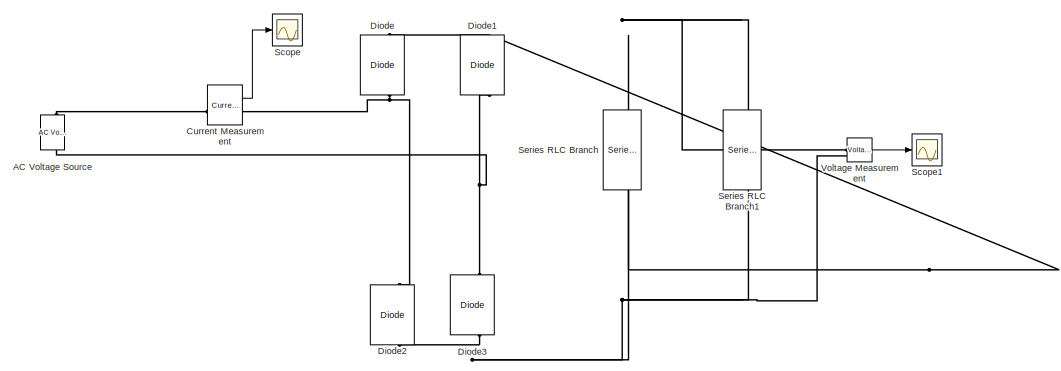
[diagram: root canvas - part 1/3, top right region]
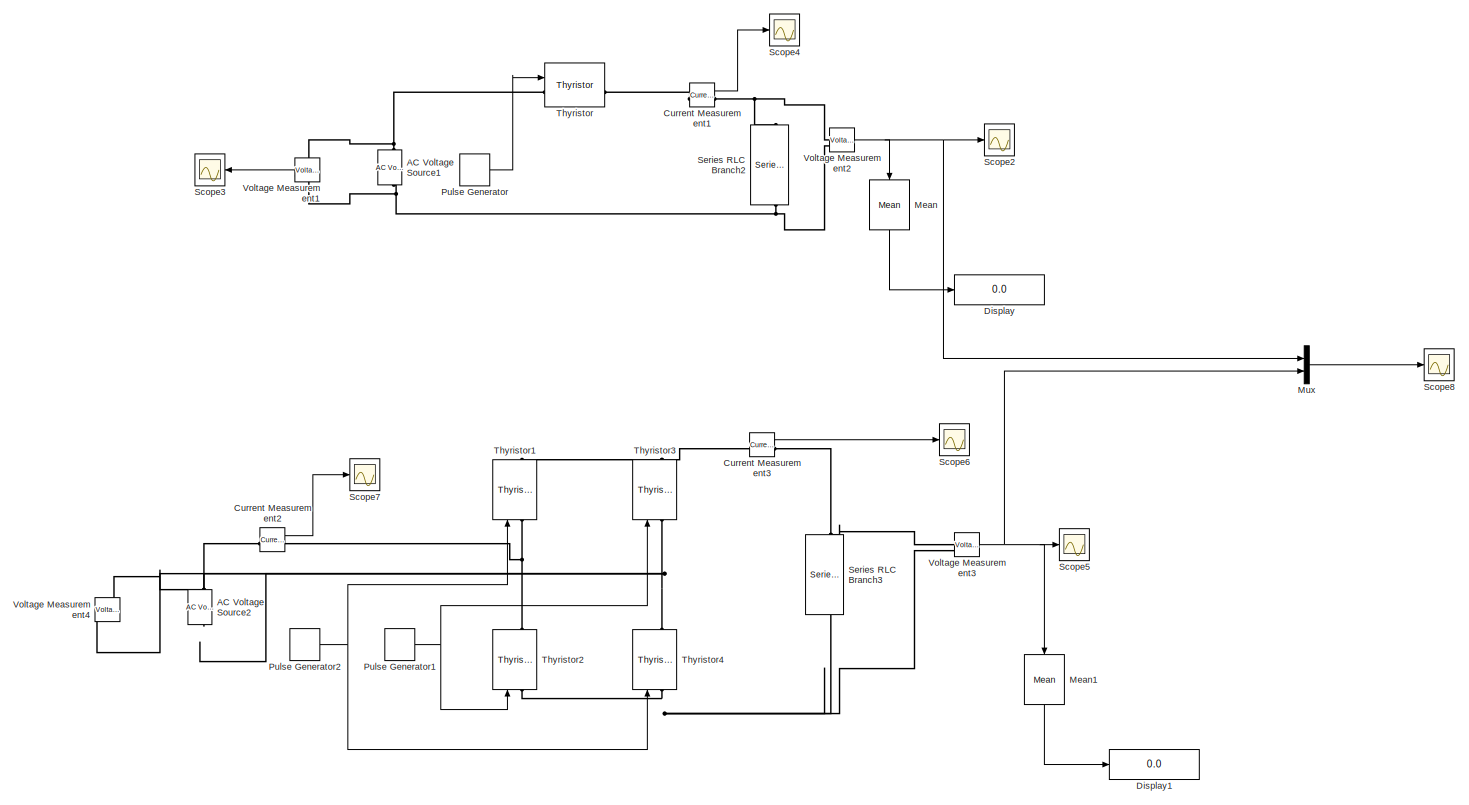
[diagram: root canvas - part 2/3, left side, full height]
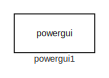
[diagram: root canvas - part 3/3, middle right region]
MODEL slx_576c6f25acc8
KIND model
CONFIG AbsTol = auto
CONFIG EnableMultiTasking = off
CONFIG FixedStep = 0.00001
CONFIG MaxStep = auto
CONFIG MinStep = auto
CONFIG RelTol = 1e-3
CONFIG SampleTimeConstraint = Unconstrained
CONFIG SolverName = VariableStepAuto
CONFIG StartTime = 0.0
CONFIG StopTime = 0.1
BLOCK [Reference] AC Voltage Source  REF=spsACVoltageSourceLib/AC Voltage Source
  Commented = on
  LibrarySourceBlock = sps_lib/Sources/AC Voltage Source
  SourceBlock = spsACVoltageSourceLib/AC Voltage Source
  SourceType = AC Voltage Source
BLOCK [Reference] AC Voltage Source1  REF=spsACVoltageSourceLib/AC Voltage Source
  Commented = on
  LibrarySourceBlock = sps_lib/Sources/AC Voltage Source
  SourceBlock = spsACVoltageSourceLib/AC Voltage Source
  SourceType = AC Voltage Source
BLOCK [Reference] AC Voltage Source2  REF=spsACVoltageSourceLib/AC Voltage Source
  Commented = on
  LibrarySourceBlock = sps_lib/Sources/AC Voltage Source
  SourceBlock = spsACVoltageSourceLib/AC Voltage Source
  SourceType = AC Voltage Source
BLOCK [Reference] Current Measurement  REF=spsCurrentMeasurementLib/Current Measurement
  Commented = on
  LibrarySourceBlock = sps_lib/Sensors and Measurements/Current Measurement
  SourceBlock = spsCurrentMeasurementLib/Current Measurement
  SourceType = Current Measurement
  UserDataPersistent = on
BLOCK [Reference] Current Measurement1  REF=spsCurrentMeasurementLib/Current Measurement
  Commented = on
  LibrarySourceBlock = sps_lib/Sensors and Measurements/Current Measurement
  SourceBlock = spsCurrentMeasurementLib/Current Measurement
  SourceType = Current Measurement
  UserDataPersistent = on
BLOCK [Reference] Current Measurement2  REF=spsCurrentMeasurementLib/Current Measurement
  Commented = on
  LibrarySourceBlock = sps_lib/Sensors and Measurements/Current Measurement
  SourceBlock = spsCurrentMeasurementLib/Current Measurement
  SourceType = Current Measurement
  UserDataPersistent = on
BLOCK [Reference] Current Measurement3  REF=spsCurrentMeasurementLib/Current Measurement
  Commented = on
  LibrarySourceBlock = sps_lib/Sensors and Measurements/Current Measurement
  SourceBlock = spsCurrentMeasurementLib/Current Measurement
  SourceType = Current Measurement
  UserDataPersistent = on
BLOCK [Reference] Diode  REF=spsDiodeLib/Diode
  Commented = on
  LibrarySourceBlock = sps_lib/Power Electronics/Diode
  NameLocation = right
  SourceBlock = spsDiodeLib/Diode
  SourceType = Diode
BLOCK [Reference] Diode1  REF=spsDiodeLib/Diode
  Commented = on
  LibrarySourceBlock = sps_lib/Power Electronics/Diode
  NameLocation = right
  SourceBlock = spsDiodeLib/Diode
  SourceType = Diode
BLOCK [Reference] Diode2  REF=spsDiodeLib/Diode
  Commented = on
  LibrarySourceBlock = sps_lib/Power Electronics/Diode
  NameLocation = right
  SourceBlock = spsDiodeLib/Diode
  SourceType = Diode
BLOCK [Reference] Diode3  REF=spsDiodeLib/Diode
  Commented = on
  LibrarySourceBlock = sps_lib/Power Electronics/Diode
  NameLocation = right
  SourceBlock = spsDiodeLib/Diode
  SourceType = Diode
BLOCK [Display] Display
  Commented = on
  Decimation = 1
BLOCK [Display] Display1
  Commented = on
  Decimation = 1
BLOCK [Reference] Mean  REF=spsMeanLib/Mean
  Commented = on
  LibrarySourceBlock = sps_lib/Sensors and Measurements/Mean
  NameLocation = left
  SourceBlock = spsMeanLib/Mean
  SourceType = Mean
BLOCK [Reference] Mean1  REF=spsMeanLib/Mean
  Commented = on
  LibrarySourceBlock = sps_lib/Sensors and Measurements/Mean
  NameLocation = left
  SourceBlock = spsMeanLib/Mean
  SourceType = Mean
BLOCK [Mux] Mux
  Commented = on
  DisplayOption = bar
  Inputs = 2
BLOCK [DiscretePulseGenerator] Pulse Generator
  Amplitude = 3
  Commented = on
  Period = 0.02
  PhaseDelay = 60/360*0.02
  PulseType = Time based
  PulseWidth = 10
BLOCK [DiscretePulseGenerator] Pulse Generator1
  Amplitude = 3
  Commented = on
  Period = 0.02
  PhaseDelay = 60/360*0.02+0.01
  PulseType = Time based
  PulseWidth = 10
BLOCK [DiscretePulseGenerator] Pulse Generator2
  Amplitude = 3
  Commented = on
  Period = 0.02
  PhaseDelay = 60/360*0.02
  PulseType = Time based
  PulseWidth = 10
BLOCK [Scope] Scope
  Commented = on
  Floating = off
  NumInputPorts = 1
  ScopeSpecificationString = Simulink.scopes.TimeScopeBlockCfg('CurrentConfiguration', extmgr.ConfigurationSet(extmgr.Configuration('Core','General UI',true),extmgr.Configuration('Core','Source UI',true),extmgr.Configuration('Sources','WiredSimulink',true,'DataLogging',true,'DataLoggingVariableName','is'),extmgr.Configuration('Visuals','Time Domain',true,'SerializedDisplays',{struct('MinYLimReal','-8.89111','MaxYLimReal','7.0...<+1434ch>
BLOCK [Scope] Scope1
  Commented = on
  Floating = off
  NumInputPorts = 1
  ScopeSpecificationString = Simulink.scopes.TimeScopeBlockCfg('CurrentConfiguration', extmgr.ConfigurationSet(extmgr.Configuration('Core','General UI',true),extmgr.Configuration('Core','Source UI',true),extmgr.Configuration('Sources','WiredSimulink',true,'DataLoggingVariableName','ScopeData1'),extmgr.Configuration('Visuals','Time Domain',true,'SerializedDisplays',{struct('MinYLimReal','149.37908','MaxYLimReal','306.09925','Y...<+1440ch>
BLOCK [Scope] Scope2
  Commented = on
  Floating = off
  NumInputPorts = 1
  ScopeSpecificationString = Simulink.scopes.TimeScopeBlockCfg('CurrentConfiguration', extmgr.ConfigurationSet(extmgr.Configuration('Core','General UI',true),extmgr.Configuration('Core','Source UI',true),extmgr.Configuration('Sources','WiredSimulink',true,'DataLoggingVariableName','ScopeData1'),extmgr.Configuration('Visuals','Time Domain',true,'SerializedDisplays',{struct('MinYLimReal','-39.31708','MaxYLimReal','349.05699','Y...<+1418ch>
BLOCK [Scope] Scope3
  Commented = on
  Floating = off
  NameLocation = top
  NumInputPorts = 1
  ScopeSpecificationString = Simulink.scopes.TimeScopeBlockCfg('CurrentConfiguration', extmgr.ConfigurationSet(extmgr.Configuration('Core','General UI',true),extmgr.Configuration('Core','Source UI',true),extmgr.Configuration('Sources','WiredSimulink',true,'DataLoggingVariableName','ScopeData2'),extmgr.Configuration('Visuals','Time Domain',true,'SerializedDisplays',{struct('MinYLimReal','-388.78021','MaxYLimReal','388.67093','...<+1422ch>
BLOCK [Scope] Scope4
  Commented = on
  Floating = off
  NumInputPorts = 1
  ScopeSpecificationString = Simulink.scopes.TimeScopeBlockCfg('CurrentConfiguration', extmgr.ConfigurationSet(extmgr.Configuration('Core','General UI',true),extmgr.Configuration('Core','Source UI',true),extmgr.Configuration('Sources','WiredSimulink',true,'DataLoggingVariableName','ScopeData3'),extmgr.Configuration('Visuals','Time Domain',true,'SerializedDisplays',{struct('MinYLimReal','-1.96585','MaxYLimReal','17.45285','YLa...<+1412ch>
BLOCK [Scope] Scope5
  Commented = on
  Floating = off
  NumInputPorts = 1
  ScopeSpecificationString = Simulink.scopes.TimeScopeBlockCfg('CurrentConfiguration', extmgr.ConfigurationSet(extmgr.Configuration('Core','General UI',true),extmgr.Configuration('Core','Source UI',true),extmgr.Configuration('Sources','WiredSimulink',true,'DataLoggingVariableName','ScopeData4'),extmgr.Configuration('Visuals','Time Domain',true,'SerializedDisplays',{struct('MinYLimReal','-38.67568','MaxYLimReal','348.07969','Y...<+1389ch>
BLOCK [Scope] Scope6
  Commented = on
  Floating = off
  NumInputPorts = 1
  ScopeSpecificationString = Simulink.scopes.TimeScopeBlockCfg('CurrentConfiguration', extmgr.ConfigurationSet(extmgr.Configuration('Core','General UI',true),extmgr.Configuration('Core','Source UI',true),extmgr.Configuration('Sources','WiredSimulink',true,'DataLoggingVariableName','ScopeData5'),extmgr.Configuration('Visuals','Time Domain',true),extmgr.Configuration('Tools','Plot Navigation',true),extmgr.Configuration('Tools',...<+40ch>
BLOCK [Scope] Scope7
  Commented = on
  Floating = off
  NumInputPorts = 1
  ScopeSpecificationString = Simulink.scopes.TimeScopeBlockCfg('CurrentConfiguration', extmgr.ConfigurationSet(extmgr.Configuration('Core','General UI',true),extmgr.Configuration('Core','Source UI',true),extmgr.Configuration('Sources','WiredSimulink',true,'DataLoggingVariableName','ScopeData6'),extmgr.Configuration('Visuals','Time Domain',true),extmgr.Configuration('Tools','Plot Navigation',true),extmgr.Configuration('Tools',...<+40ch>
BLOCK [Scope] Scope8
  Commented = on
  Floating = off
  NumInputPorts = 1
  ScopeSpecificationString = Simulink.scopes.TimeScopeBlockCfg('CurrentConfiguration', extmgr.ConfigurationSet(extmgr.Configuration('Core','General UI',true),extmgr.Configuration('Core','Source UI',true),extmgr.Configuration('Sources','WiredSimulink',true,'DataLoggingVariableName','ScopeData7'),extmgr.Configuration('Visuals','Time Domain',true,'SerializedDisplays',{struct('MinYLimReal','-39.31708','MaxYLimReal','349.05699','Y...<+1460ch>
BLOCK [Reference] Series RLC Branch  REF=spsSeriesRLCBranchLib/Series RLC Branch
  Commented = on
  LibrarySourceBlock = sps_lib/Passives/Series RLC Branch
  NameLocation = left
  SourceBlock = spsSeriesRLCBranchLib/Series RLC Branch
  SourceType = Series RLC Branch
BLOCK [Reference] Series RLC Branch1  REF=spsSeriesRLCBranchLib/Series RLC Branch
  Commented = on
  LibrarySourceBlock = sps_lib/Passives/Series RLC Branch
  NameLocation = left
  SourceBlock = spsSeriesRLCBranchLib/Series RLC Branch
  SourceType = Series RLC Branch
BLOCK [Reference] Series RLC Branch2  REF=spsSeriesRLCBranchLib/Series RLC Branch
  Commented = on
  LibrarySourceBlock = sps_lib/Passives/Series RLC Branch
  NameLocation = left
  SourceBlock = spsSeriesRLCBranchLib/Series RLC Branch
  SourceType = Series RLC Branch
BLOCK [Reference] Series RLC Branch3  REF=spsSeriesRLCBranchLib/Series RLC Branch
  Commented = on
  LibrarySourceBlock = sps_lib/Passives/Series RLC Branch
  NameLocation = left
  SourceBlock = spsSeriesRLCBranchLib/Series RLC Branch
  SourceType = Series RLC Branch
BLOCK [Reference] Thyristor  REF=spsThyristorLib/Thyristor
  Commented = on
  LibrarySourceBlock = sps_lib/Power Electronics/Thyristor
  SourceBlock = spsThyristorLib/Thyristor
  SourceType = Thyristor
BLOCK [Reference] Thyristor1  REF=spsThyristorLib/Thyristor
  Commented = on
  LibrarySourceBlock = sps_lib/Power Electronics/Thyristor
  NameLocation = right
  SourceBlock = spsThyristorLib/Thyristor
  SourceType = Thyristor
BLOCK [Reference] Thyristor2  REF=spsThyristorLib/Thyristor
  Commented = on
  LibrarySourceBlock = sps_lib/Power Electronics/Thyristor
  NameLocation = right
  SourceBlock = spsThyristorLib/Thyristor
  SourceType = Thyristor
BLOCK [Reference] Thyristor3  REF=spsThyristorLib/Thyristor
  Commented = on
  LibrarySourceBlock = sps_lib/Power Electronics/Thyristor
  NameLocation = right
  SourceBlock = spsThyristorLib/Thyristor
  SourceType = Thyristor
BLOCK [Reference] Thyristor4  REF=spsThyristorLib/Thyristor
  Commented = on
  LibrarySourceBlock = sps_lib/Power Electronics/Thyristor
  NameLocation = right
  SourceBlock = spsThyristorLib/Thyristor
  SourceType = Thyristor
BLOCK [Reference] Voltage Measurement  REF=spsVoltageMeasurementLib/Voltage Measurement
  Commented = on
  LibrarySourceBlock = sps_lib/Sensors and Measurements/Voltage Measurement
  SourceBlock = spsVoltageMeasurementLib/Voltage Measurement
  SourceType = Voltage Measurement
  UserDataPersistent = on
BLOCK [Reference] Voltage Measurement1  REF=spsVoltageMeasurementLib/Voltage Measurement
  Commented = on
  LibrarySourceBlock = sps_lib/Sensors and Measurements/Voltage Measurement
  NameLocation = top
  SourceBlock = spsVoltageMeasurementLib/Voltage Measurement
  SourceType = Voltage Measurement
  UserDataPersistent = on
BLOCK [Reference] Voltage Measurement2  REF=spsVoltageMeasurementLib/Voltage Measurement
  Commented = on
  LibrarySourceBlock = sps_lib/Sensors and Measurements/Voltage Measurement
  SourceBlock = spsVoltageMeasurementLib/Voltage Measurement
  SourceType = Voltage Measurement
  UserDataPersistent = on
BLOCK [Reference] Voltage Measurement3  REF=spsVoltageMeasurementLib/Voltage Measurement
  Commented = on
  LibrarySourceBlock = sps_lib/Sensors and Measurements/Voltage Measurement
  SourceBlock = spsVoltageMeasurementLib/Voltage Measurement
  SourceType = Voltage Measurement
  UserDataPersistent = on
BLOCK [Reference] Voltage Measurement4  REF=spsVoltageMeasurementLib/Voltage Measurement
  Commented = on
  LibrarySourceBlock = sps_lib/Sensors and Measurements/Voltage Measurement
  NameLocation = top
  SourceBlock = spsVoltageMeasurementLib/Voltage Measurement
  SourceType = Voltage Measurement
  UserDataPersistent = on
BLOCK [Reference] powergui1  REF=sps_lib/powergui
  LibrarySourceBlock = sps_lib/powergui
  Priority = 1
  SourceBlock = sps_lib/powergui
  SourceType = PSB option menu block
LINE Current Measurement1:1 -> Scope4:1
LINE Current Measurement2:1 -> Scope7:1
LINE Current Measurement3:1 -> Scope6:1
LINE Current Measurement:1 -> Scope:1
LINE Mean1:1 -> Display1:1
LINE Mean:1 -> Display:1
LINE Mux:1 -> Scope8:1
NET Pulse Generator1:1 -> Thyristor2:1, Thyristor3:1
NET Pulse Generator2:1 -> Thyristor1:1, Thyristor4:1
LINE Pulse Generator:1 -> Thyristor:1
LINE Voltage Measurement1:1 -> Scope3:1
NET Voltage Measurement2:1 -> Mean:1, Mux:1, Scope2:1
NET Voltage Measurement3:1 -> Mean1:1, Mux:2, Scope5:1
LINE Voltage Measurement:1 -> Scope1:1
PNET net1: AC Voltage Source1:LConn1 -- Series RLC Branch2:RConn1 -- Voltage Measurement1:LConn1 -- Voltage Measurement2:LConn2
PNET net2: AC Voltage Source1:RConn1 -- Thyristor:LConn1 -- Voltage Measurement1:LConn2
PNET net3: AC Voltage Source2:LConn1 -- Thyristor3:LConn1 -- Thyristor4:RConn1 -- Voltage Measurement4:LConn2
PNET net4: AC Voltage Source2:RConn1 -- Current Measurement2:LConn1 -- Voltage Measurement4:LConn1
PNET net5: AC Voltage Source:LConn1 -- Diode1:LConn1 -- Diode3:RConn1
PLINE AC Voltage Source:RConn1 -- Current Measurement:LConn1
PLINE Current Measurement1:LConn1 -- Thyristor:RConn1
PNET net6: Current Measurement1:RConn1 -- Series RLC Branch2:LConn1 -- Voltage Measurement2:LConn1
PNET net7: Current Measurement2:RConn1 -- Thyristor1:LConn1 -- Thyristor2:RConn1
PNET net8: Current Measurement3:LConn1 -- Thyristor1:RConn1 -- Thyristor3:RConn1
PNET net9: Current Measurement3:RConn1 -- Series RLC Branch3:LConn1 -- Voltage Measurement3:LConn1
PNET net10: Current Measurement:RConn1 -- Diode2:RConn1 -- Diode:LConn1
PNET net11: Diode1:RConn1 -- Diode:RConn1 -- Series RLC Branch1:LConn1 -- Series RLC Branch:LConn1 -- Voltage Measurement:LConn1
PNET net12: Diode2:LConn1 -- Diode3:LConn1 -- Series RLC Branch1:RConn1 -- Series RLC Branch:RConn1 -- Voltage Measurement:LConn2
PNET net13: Series RLC Branch3:RConn1 -- Thyristor2:LConn1 -- Thyristor4:LConn1 -- Voltage Measurement3:LConn2
note: NET lines group one-source signal fan-out (src -> all destinations, sorted); 1:1 wires keep LINE; PNET lines group multi-terminal physical nets as a canonical sorted terminal list (undirected conserving connections); 2-terminal nets keep the pairwise PLINE form
